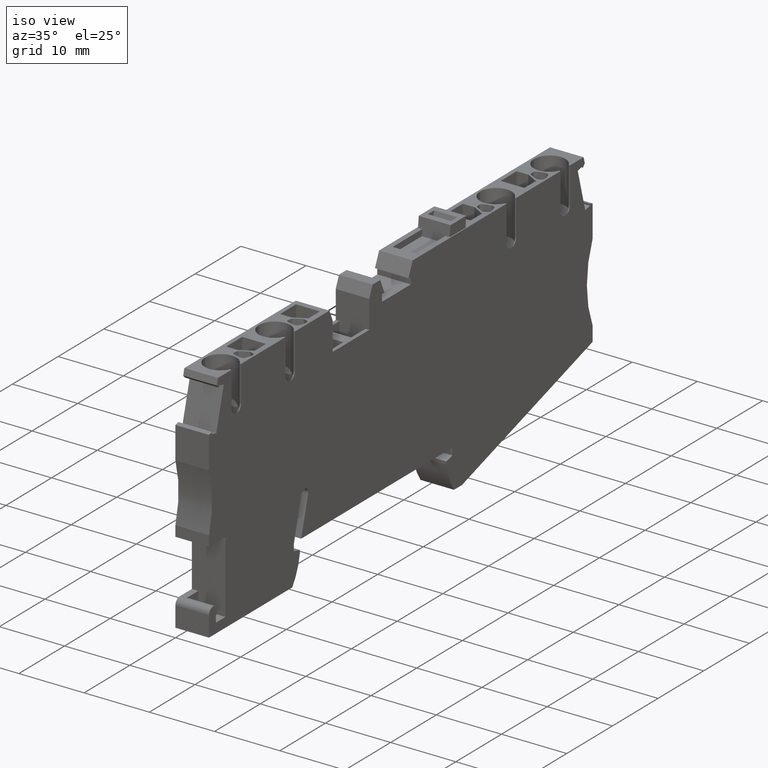
[diagram: clean part render]
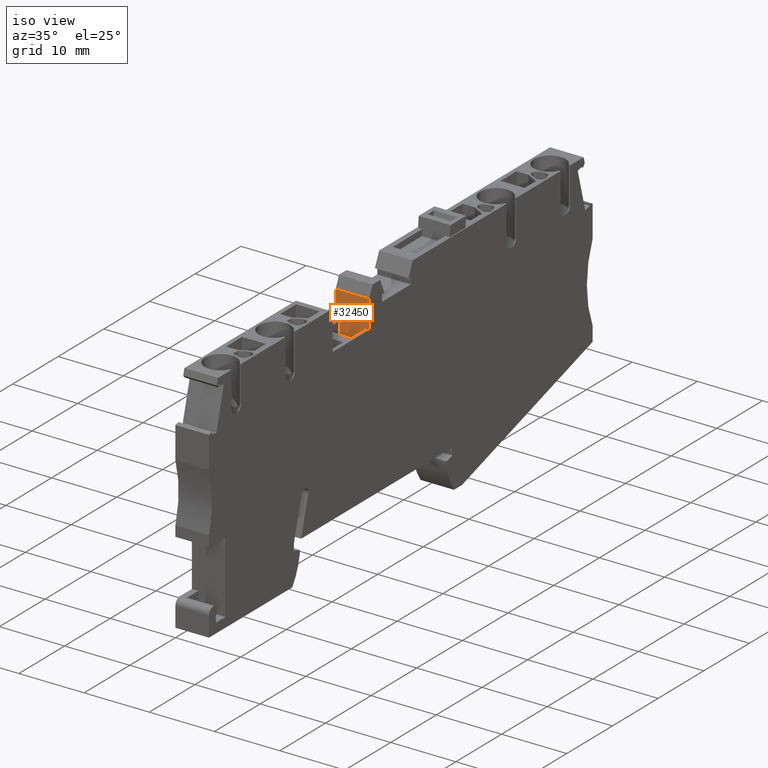
[diagram: same view with one face highlighted and labeled with its STEP entity id]
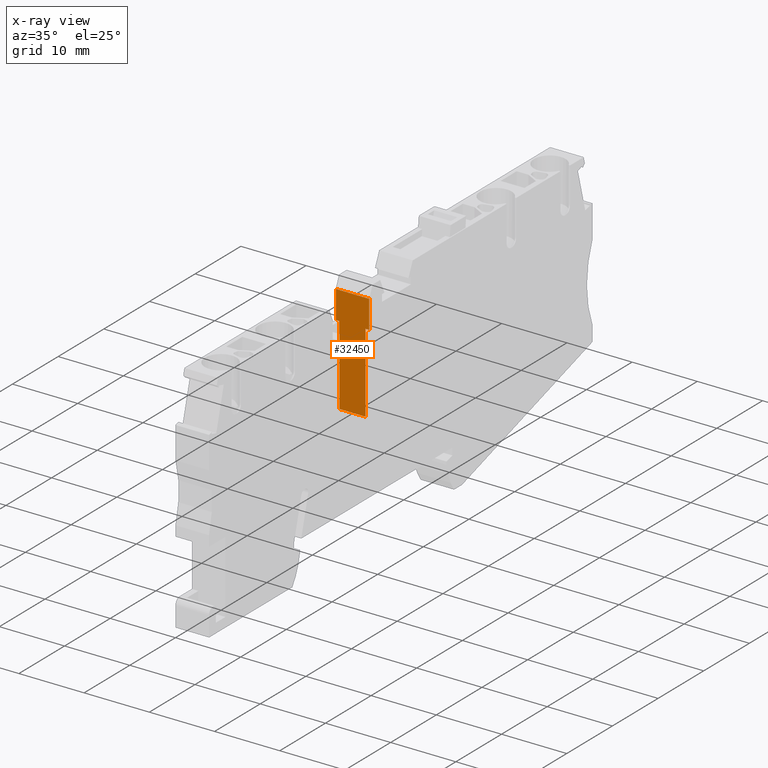
[diagram: x-ray of the same camera — body ghosted, the highlighted face saturated]
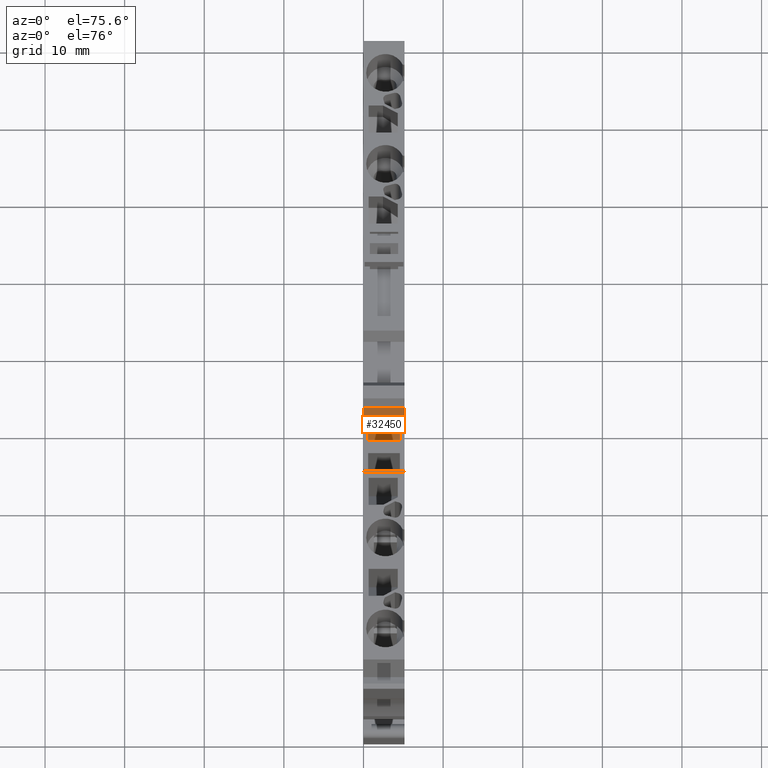
[diagram: same view with one face highlighted and labeled with its STEP entity id]
A machine part, iso view. The second image highlights one B-rep face of the part: STEP entity #32450.
The next image is the same camera in x-ray: the body ghosted, the highlighted face saturated — about 0% of this face is hidden behind the body in this view.
A second angle (auxiliary view) of the same face is appended — the face is thin or edge-on in the first view.
In plain terms, the highlighted planar face has unit normal (-0, 1, 0).
Its self-contained STEP definition (entity closure, byte-faithful):
#1630=CARTESIAN_POINT('',(12.7321672216754,-10.8500000000026,
53.6699999999049));
#1640=VERTEX_POINT('',#1630);
#1670=CARTESIAN_POINT('',(12.7321672216754,-10.8500000000026,49.845));
#1680=DIRECTION('',(0.,0.,1.));
#1690=VECTOR('',#1680,1.);
#1700=LINE('',#1670,#1690);
#1710=CARTESIAN_POINT('',(12.7321672216753,-10.8500000000026,
48.5199999999973));
#1720=VERTEX_POINT('',#1710);
#1730=EDGE_CURVE('',#1720,#1640,#1700,.T.);
#13190=CARTESIAN_POINT('',(12.7321672216753,-15.1500000000009,
53.6699999999025));
#13200=VERTEX_POINT('',#13190);
#13230=CARTESIAN_POINT('',(12.7321672216755,-44.0028950484053,
53.6699999999973));
#13240=DIRECTION('',(-5.53723733531797E-15,1.,0.));
#13250=VECTOR('',#13240,1.);
#13260=LINE('',#13230,#13250);
#13270=EDGE_CURVE('',#13200,#1640,#13260,.T.);
#18000=CARTESIAN_POINT('',(12.7321672216755,-44.0028950484053,
48.5199999999973));
#18010=DIRECTION('',(-5.53723733531797E-15,1.,0.));
#18020=VECTOR('',#18010,1.);
#18030=LINE('',#18000,#18020);
#18040=CARTESIAN_POINT('',(12.7321672216753,-15.1500000000009,
48.5199999999973));
#18050=VERTEX_POINT('',#18040);
#18060=EDGE_CURVE('',#18050,#1720,#18030,.T.);
#20590=CARTESIAN_POINT('',(12.7321672216753,-15.1500000000009,53.67));
#20600=DIRECTION('',(0.,0.,1.));
#20610=VECTOR('',#20600,1.);
#20620=LINE('',#20590,#20610);
#20630=CARTESIAN_POINT('',(12.7321672216753,-15.1500000000009,49.095));
#20640=VERTEX_POINT('',#20630);
#20650=EDGE_CURVE('',#18050,#20640,#20620,.T.);
#20870=CARTESIAN_POINT('',(12.7321672216753,-15.1500000000009,53.095));
#20880=VERTEX_POINT('',#20870);
#20910=EDGE_CURVE('',#20880,#13200,#20620,.T.);
#28320=CARTESIAN_POINT('',(12.7321672216753,-44.0028950484053,49.095));
#28330=DIRECTION('',(0.,-1.,0.));
#28340=VECTOR('',#28330,1.);
#28350=LINE('',#28320,#28340);
#28360=CARTESIAN_POINT('',(12.7321672216753,-27.3499971083009,49.095));
#28370=VERTEX_POINT('',#28360);
#28380=EDGE_CURVE('',#20640,#28370,#28350,.T.);
#32180=CARTESIAN_POINT('',(12.7321672216753,-15.1500000000009,53.095));
#32190=DIRECTION('',(1.,0.,-0.));
#32200=DIRECTION('',(0.,0.,1.));
#32210=AXIS2_PLACEMENT_3D('',#32180,#32190,#32200);
#32220=PLANE('',#32210);
#32230=ORIENTED_EDGE('',*,*,#20650,.T.);
#32240=ORIENTED_EDGE('',*,*,#18060,.F.);
#32250=ORIENTED_EDGE('',*,*,#1730,.F.);
#32260=ORIENTED_EDGE('',*,*,#13270,.T.);
#32270=ORIENTED_EDGE('',*,*,#20910,.T.);
#32280=CARTESIAN_POINT('',(12.7321672216753,-44.0028950484053,53.095));
#32290=DIRECTION('',(0.,-1.,0.));
#32300=VECTOR('',#32290,1.);
#32310=LINE('',#32280,#32300);
#32320=CARTESIAN_POINT('',(12.7321672216753,-27.3499971083009,53.095));
#32330=VERTEX_POINT('',#32320);
#32340=EDGE_CURVE('',#20880,#32330,#32310,.T.);
#32350=ORIENTED_EDGE('',*,*,#32340,.F.);
#32360=CARTESIAN_POINT('',(12.7321672216753,-27.3499971083009,53.67));
#32370=DIRECTION('',(0.,0.,1.));
#32380=VECTOR('',#32370,1.);
#32390=LINE('',#32360,#32380);
#32400=EDGE_CURVE('',#28370,#32330,#32390,.T.);
#32410=ORIENTED_EDGE('',*,*,#32400,.T.);
#32420=ORIENTED_EDGE('',*,*,#28380,.T.);
#32430=EDGE_LOOP('',(#32420,#32410,#32350,#32270,#32260,#32250,#32240,
#32230));
#32440=FACE_OUTER_BOUND('',#32430,.T.);
#32450=ADVANCED_FACE('',(#32440),#32220,.F.);